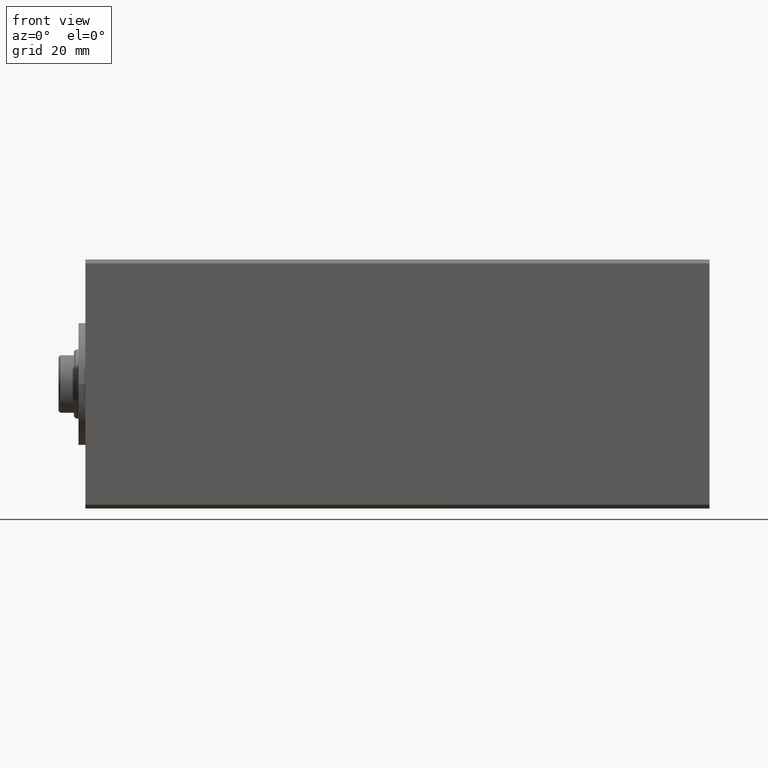
[diagram: clean part render]
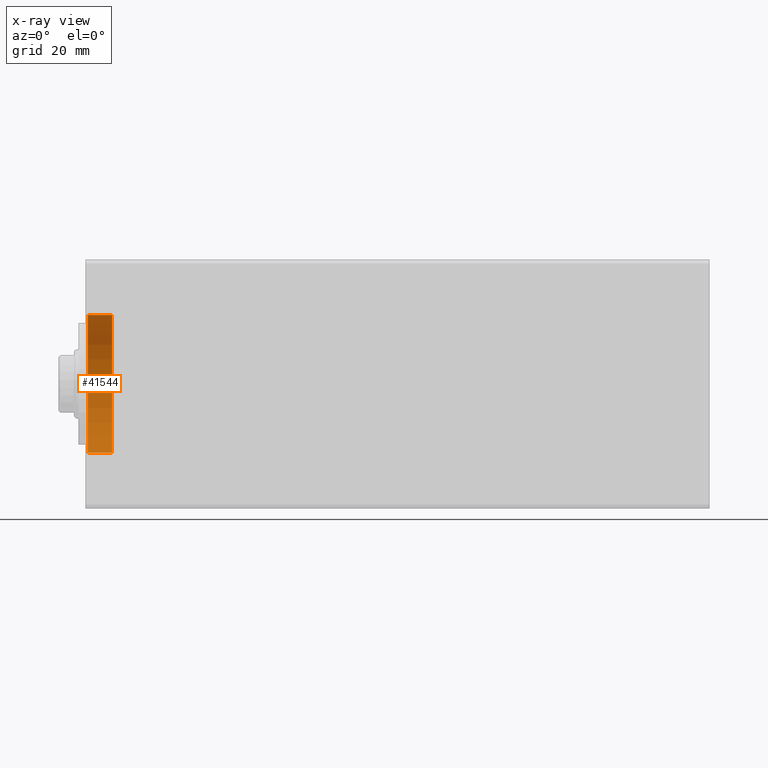
[diagram: x-ray — body ghosted, one internal face saturated and labeled with its STEP entity id]
A machine part, front view, then the same camera in x-ray: the body is ghosted and one INTERNAL B-rep face — a face not visible from any outside direction — is saturated and labeled: STEP entity #41544.
In plain terms, the highlighted cylindrical surface (partial cylindrical patch) has radius 18 mm, axis along (-1, -0, -0).
Its self-contained STEP definition (entity closure, byte-faithful):
#233 = AXIS2_PLACEMENT_3D ( 'NONE', #15173, #5122, #28652 ) ;
#713 = FACE_OUTER_BOUND ( 'NONE', #16836, .T. ) ;
#950 = CARTESIAN_POINT ( 'NONE',  ( 7.000000000000000000, 0.000000000000000000, 18.00000000000000000 ) ) ;
#1390 = CARTESIAN_POINT ( 'NONE',  ( 0.6999999999999749756, 2.204364238465235428E-15, -18.00000000000000000 ) ) ;
#1395 = DIRECTION ( 'NONE',  ( 0.000000000000000000, 0.000000000000000000, 1.000000000000000000 ) ) ;
#2921 = AXIS2_PLACEMENT_3D ( 'NONE', #32771, #8098, #14721 ) ;
#3662 = CIRCLE ( 'NONE', #2921, 18.00000000000000000 ) ;
#3693 = DIRECTION ( 'NONE',  ( -1.000000000000000000, -0.000000000000000000, -0.000000000000000000 ) ) ;
#5122 = DIRECTION ( 'NONE',  ( -1.000000000000000000, 0.000000000000000000, 0.000000000000000000 ) ) ;
#6515 = ORIENTED_EDGE ( 'NONE', *, *, #21429, .T. ) ;
#7717 = EDGE_CURVE ( 'NONE', #28888, #26898, #3662, .T. ) ;
#8058 = VERTEX_POINT ( 'NONE', #20534 ) ;
#8098 = DIRECTION ( 'NONE',  ( -1.000000000000000000, 0.000000000000000000, 0.000000000000000000 ) ) ;
#8264 = DIRECTION ( 'NONE',  ( -1.000000000000000000, -0.000000000000000000, -0.000000000000000000 ) ) ;
#9013 = AXIS2_PLACEMENT_3D ( 'NONE', #39765, #42284, #1395 ) ;
#14721 = DIRECTION ( 'NONE',  ( 0.000000000000000000, 0.000000000000000000, -1.000000000000000000 ) ) ;
#14871 = LINE ( 'NONE', #42737, #40416 ) ;
#15173 = CARTESIAN_POINT ( 'NONE',  ( 7.000000000000000000, 0.000000000000000000, 0.000000000000000000 ) ) ;
#15871 = EDGE_CURVE ( 'NONE', #8058, #41725, #44759, .T. ) ;
#16836 = EDGE_LOOP ( 'NONE', ( #35426, #44590, #6515, #27969 ) ) ;
#18045 = CARTESIAN_POINT ( 'NONE',  ( 0.6999999999999749756, 0.000000000000000000, 18.00000000000000000 ) ) ;
#18645 = EDGE_CURVE ( 'NONE', #41725, #26898, #14871, .T. ) ;
#20534 = CARTESIAN_POINT ( 'NONE',  ( 7.000000000000000000, 0.000000000000000000, 18.00000000000000000 ) ) ;
#21429 = EDGE_CURVE ( 'NONE', #8058, #28888, #32023, .T. ) ;
#21956 = CYLINDRICAL_SURFACE ( 'NONE', #9013, 18.00000000000000000 ) ;
#26898 = VERTEX_POINT ( 'NONE', #1390 ) ;
#27969 = ORIENTED_EDGE ( 'NONE', *, *, #7717, .T. ) ;
#28652 = DIRECTION ( 'NONE',  ( 0.000000000000000000, 0.000000000000000000, 1.000000000000000000 ) ) ;
#28888 = VERTEX_POINT ( 'NONE', #18045 ) ;
#32023 = LINE ( 'NONE', #950, #36103 ) ;
#32771 = CARTESIAN_POINT ( 'NONE',  ( 0.6999999999999749756, 0.000000000000000000, 0.000000000000000000 ) ) ;
#35426 = ORIENTED_EDGE ( 'NONE', *, *, #18645, .F. ) ;
#36103 = VECTOR ( 'NONE', #8264, 1000.000000000000000 ) ;
#37026 = CARTESIAN_POINT ( 'NONE',  ( 7.000000000000000000, 2.204364238465235428E-15, -18.00000000000000000 ) ) ;
#39765 = CARTESIAN_POINT ( 'NONE',  ( 7.000000000000000000, 0.000000000000000000, 0.000000000000000000 ) ) ;
#40416 = VECTOR ( 'NONE', #3693, 1000.000000000000000 ) ;
#41544 = ADVANCED_FACE ( 'NONE', ( #713 ), #21956, .F. ) ;
#41725 = VERTEX_POINT ( 'NONE', #37026 ) ;
#42284 = DIRECTION ( 'NONE',  ( -1.000000000000000000, -0.000000000000000000, -0.000000000000000000 ) ) ;
#42737 = CARTESIAN_POINT ( 'NONE',  ( 7.000000000000000000, 2.204364238465235428E-15, -18.00000000000000000 ) ) ;
#44590 = ORIENTED_EDGE ( 'NONE', *, *, #15871, .F. ) ;
#44759 = CIRCLE ( 'NONE', #233, 18.00000000000000000 ) ;